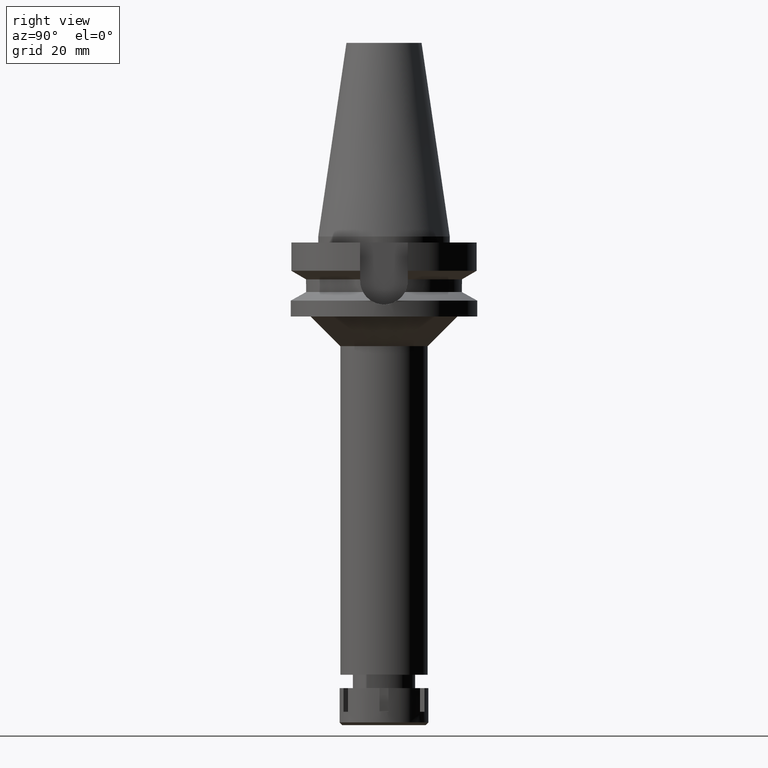
[diagram: clean part render]
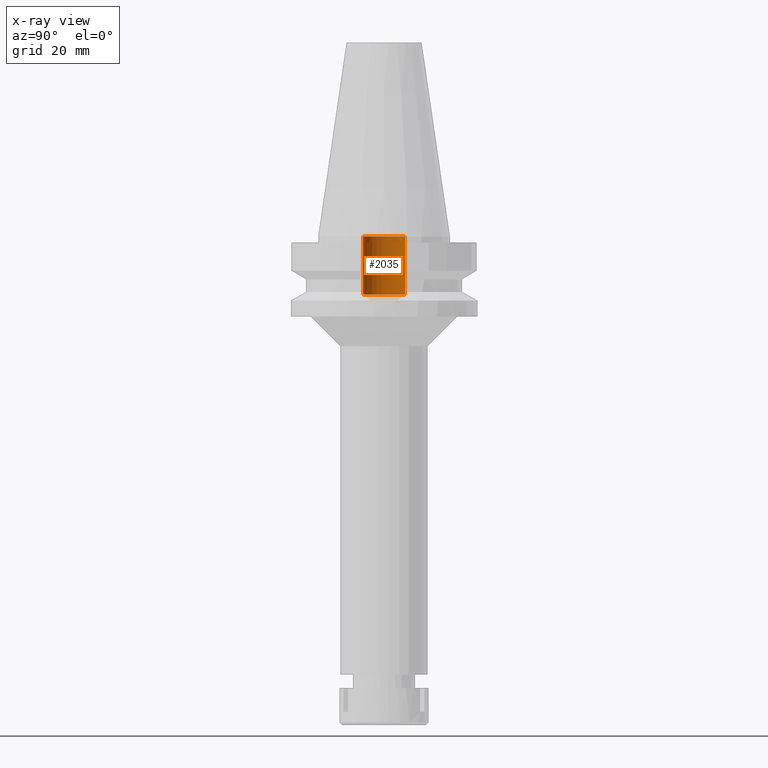
[diagram: x-ray — body ghosted, one internal face saturated and labeled with its STEP entity id]
A machine part, right view, then the same camera in x-ray: the body is ghosted and one INTERNAL B-rep face — a face not visible from any outside direction — is saturated and labeled: STEP entity #2035.
In plain terms, the highlighted cylindrical surface (edge-blend (fillet) strip) has radius 7.1 mm, axis along (0, 0, -1).
Its self-contained STEP definition (entity closure, byte-faithful):
#122 = VERTEX_POINT ( 'NONE', #3474 ) ;
#182 = DIRECTION ( 'NONE',  ( 0.0000000000000000000, 0.0000000000000000000, 1.000000000000000000 ) ) ;
#267 = EDGE_CURVE ( 'NONE', #1853, #3365, #1006, .T. ) ;
#462 = ORIENTED_EDGE ( 'NONE', *, *, #3510, .F. ) ;
#466 = DIRECTION ( 'NONE',  ( 0.0000000000000000000, 0.0000000000000000000, 1.000000000000000000 ) ) ;
#506 = DIRECTION ( 'NONE',  ( 0.0000000000000000000, 0.0000000000000000000, -1.000000000000000000 ) ) ;
#522 = LINE ( 'NONE', #3578, #2713 ) ;
#541 = CARTESIAN_POINT ( 'NONE',  ( 0.0000000000000000000, -7.100000000000000533, -19.59999999999999787 ) ) ;
#648 = EDGE_CURVE ( 'NONE', #2083, #1853, #724, .T. ) ;
#724 = CIRCLE ( 'NONE', #3294, 7.100000000000000533 ) ;
#761 = ORIENTED_EDGE ( 'NONE', *, *, #267, .T. ) ;
#788 = CARTESIAN_POINT ( 'NONE',  ( 0.0000000000000000000, 2.162358853253999590E-14, -19.59999999999999787 ) ) ;
#797 = CARTESIAN_POINT ( 'NONE',  ( 0.0000000000000000000, 7.100000000000000533, -19.59999999999999787 ) ) ;
#830 = EDGE_LOOP ( 'NONE', ( #2522, #462, #1800, #761 ) ) ;
#853 = AXIS2_PLACEMENT_3D ( 'NONE', #1974, #3091, #1110 ) ;
#1006 = LINE ( 'NONE', #797, #2174 ) ;
#1110 = DIRECTION ( 'NONE',  ( 0.0000000000000000000, -1.000000000000000000, 0.0000000000000000000 ) ) ;
#1150 = DIRECTION ( 'NONE',  ( 0.0000000000000000000, -1.000000000000000000, 0.0000000000000000000 ) ) ;
#1800 = ORIENTED_EDGE ( 'NONE', *, *, #648, .T. ) ;
#1853 = VERTEX_POINT ( 'NONE', #3484 ) ;
#1956 = AXIS2_PLACEMENT_3D ( 'NONE', #1990, #2497, #1150 ) ;
#1974 = CARTESIAN_POINT ( 'NONE',  ( 0.0000000000000000000, 2.162358853253999590E-14, 2.842170943039999687E-14 ) ) ;
#1990 = CARTESIAN_POINT ( 'NONE',  ( 0.0000000000000000000, 2.162358853253999590E-14, 76.56999999999999318 ) ) ;
#2035 = ADVANCED_FACE ( 'NONE', ( #2705 ), #3577, .F. ) ;
#2083 = VERTEX_POINT ( 'NONE', #541 ) ;
#2174 = VECTOR ( 'NONE', #182, 1000.000000000000000 ) ;
#2429 = CARTESIAN_POINT ( 'NONE',  ( 0.0000000000000000000, 7.100000000000000533, 1.421085471519999843E-14 ) ) ;
#2497 = DIRECTION ( 'NONE',  ( 0.0000000000000000000, 0.0000000000000000000, -1.000000000000000000 ) ) ;
#2522 = ORIENTED_EDGE ( 'NONE', *, *, #3580, .F. ) ;
#2705 = FACE_OUTER_BOUND ( 'NONE', #830, .T. ) ;
#2713 = VECTOR ( 'NONE', #466, 1000.000000000000000 ) ;
#3091 = DIRECTION ( 'NONE',  ( 0.0000000000000000000, 0.0000000000000000000, -1.000000000000000000 ) ) ;
#3237 = DIRECTION ( 'NONE',  ( 0.0000000000000000000, -1.000000000000000000, 0.0000000000000000000 ) ) ;
#3245 = CIRCLE ( 'NONE', #853, 7.100000000000000533 ) ;
#3294 = AXIS2_PLACEMENT_3D ( 'NONE', #788, #506, #3237 ) ;
#3365 = VERTEX_POINT ( 'NONE', #2429 ) ;
#3474 = CARTESIAN_POINT ( 'NONE',  ( 0.0000000000000000000, -7.100000000000000533, 1.421085471519999843E-14 ) ) ;
#3484 = CARTESIAN_POINT ( 'NONE',  ( 0.0000000000000000000, 7.100000000000000533, -19.59999999999999787 ) ) ;
#3510 = EDGE_CURVE ( 'NONE', #2083, #122, #522, .T. ) ;
#3577 = CYLINDRICAL_SURFACE ( 'NONE', #1956, 7.100000000000000533 ) ;
#3578 = CARTESIAN_POINT ( 'NONE',  ( 0.0000000000000000000, -7.100000000000000533, -19.59999999999999787 ) ) ;
#3580 = EDGE_CURVE ( 'NONE', #122, #3365, #3245, .T. ) ;